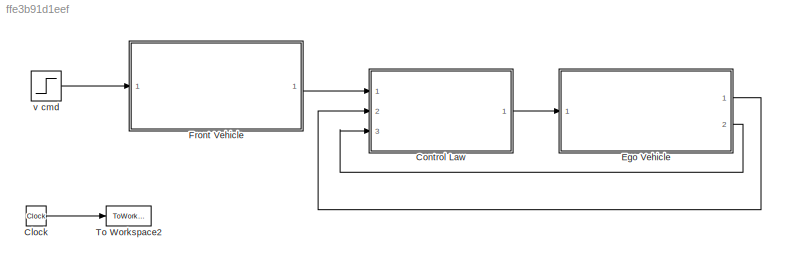
MODEL slx_ffe3b91d1eef
KIND model
CONFIG AbsTol = auto
CONFIG EnableMultiTasking = off
CONFIG FixedStep = dt
CONFIG MaxStep = auto
CONFIG MinStep = auto
CONFIG RelTol = 1e-3
CONFIG SampleTimeConstraint = Unconstrained
CONFIG Solver = FixedStepAuto
CONFIG SolverName = FixedStepAuto
CONFIG StartTime = 0.0
CONFIG StopTime = 40
BLOCK [Clock] Clock
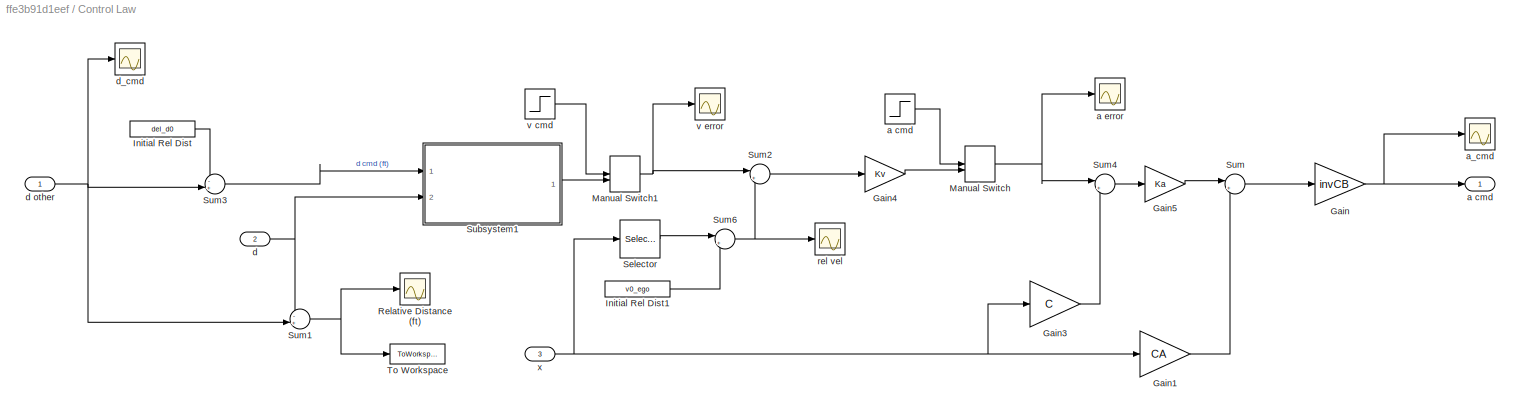
BLOCK [SubSystem] Control Law
  Ports = [3, 1]
  RequestExecContextInheritance = off
BLOCK [Gain] Control Law/Gain
  Gain = invCB
  Multiplication = Matrix(K*u)
  OutDataTypeStr = Inherit: Inherit via internal rule
  ParamDataTypeStr = Inherit: Inherit via internal rule
  SaturateOnIntegerOverflow = off
BLOCK [Gain] Control Law/Gain1
  Gain = CA
  Multiplication = Matrix(K*u)
  OutDataTypeStr = Inherit: Inherit via internal rule
  ParamDataTypeStr = Inherit: Inherit via internal rule
  SaturateOnIntegerOverflow = off
BLOCK [Gain] Control Law/Gain3
  Gain = C
  Multiplication = Matrix(K*u)
  OutDataTypeStr = Inherit: Inherit via internal rule
  ParamDataTypeStr = Inherit: Inherit via internal rule
  SaturateOnIntegerOverflow = off
BLOCK [Gain] Control Law/Gain4
  Gain = Kv
  OutDataTypeStr = Inherit: Inherit via internal rule
  ParamDataTypeStr = Inherit: Inherit via internal rule
  SaturateOnIntegerOverflow = off
BLOCK [Gain] Control Law/Gain5
  Gain = Ka
  OutDataTypeStr = Inherit: Inherit via internal rule
  ParamDataTypeStr = Inherit: Inherit via internal rule
  SaturateOnIntegerOverflow = off
BLOCK [Constant] Control Law/Initial Rel Dist
  Value = del_d0
BLOCK [Constant] Control Law/Initial Rel Dist1
  Value = v0_ego
BLOCK [ManualSwitch] Control Law/Manual Switch
  CurrentSetting = 0
BLOCK [ManualSwitch] Control Law/Manual Switch1
  CurrentSetting = 0
BLOCK [Scope] Control Law/Relative Distance (ft)
  Floating = off
  NumInputPorts = 1
  Ports = [1]
  ScopeSpecificationString = Simulink.scopes.TimeScopeBlockCfg('CurrentConfiguration', extmgr.ConfigurationSet(extmgr.Configuration('Core','General UI',true),extmgr.Configuration('Core','Source UI',true),extmgr.Configuration('Sources','WiredSimulink',true,'DataLoggingVariableName','ScopeData1'),extmgr.Configuration('Visuals','Time Domain',true,'SerializedDisplays',{struct('MinYLimReal','58.1625','MaxYLimReal','76.5375','YLabe...<+1417ch>
BLOCK [Selector] Control Law/Selector
  IndexOptions = Index vector (dialog)
  Indices = 1
  InputPortWidth = 2
  OutputSizes = 1
  Ports = [1, 1]
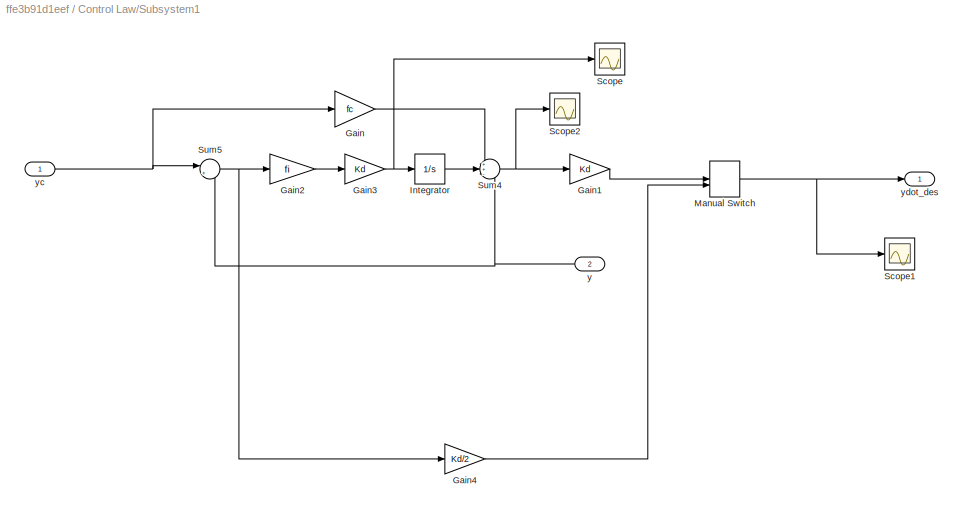
BLOCK [SubSystem] Control Law/Subsystem1
  Ports = [2, 1]
  RequestExecContextInheritance = off
BLOCK [Gain] Control Law/Subsystem1/Gain
  Gain = fc
  OutDataTypeStr = Inherit: Inherit via internal rule
  ParamDataTypeStr = Inherit: Inherit via internal rule
  SaturateOnIntegerOverflow = off
BLOCK [Gain] Control Law/Subsystem1/Gain1
  Gain = Kd
  OutDataTypeStr = Inherit: Inherit via internal rule
  ParamDataTypeStr = Inherit: Inherit via internal rule
  SaturateOnIntegerOverflow = off
BLOCK [Gain] Control Law/Subsystem1/Gain2
  Gain = fi
  OutDataTypeStr = Inherit: Inherit via internal rule
  ParamDataTypeStr = Inherit: Inherit via internal rule
  SaturateOnIntegerOverflow = off
BLOCK [Gain] Control Law/Subsystem1/Gain3
  Gain = Kd
  OutDataTypeStr = Inherit: Inherit via internal rule
  ParamDataTypeStr = Inherit: Inherit via internal rule
  SaturateOnIntegerOverflow = off
BLOCK [Gain] Control Law/Subsystem1/Gain4
  Gain = Kd/2
  OutDataTypeStr = Inherit: Inherit via internal rule
  ParamDataTypeStr = Inherit: Inherit via internal rule
  SaturateOnIntegerOverflow = off
BLOCK [Integrator] Control Law/Subsystem1/Integrator
  Ports = [1, 1]
BLOCK [ManualSwitch] Control Law/Subsystem1/Manual Switch
BLOCK [Scope] Control Law/Subsystem1/Scope
  Floating = off
  NumInputPorts = 1
  Ports = [1]
  ScopeSpecificationString = Simulink.scopes.TimeScopeBlockCfg('CurrentConfiguration', extmgr.ConfigurationSet(extmgr.Configuration('Core','General UI',true),extmgr.Configuration('Core','Source UI',true),extmgr.Configuration('Sources','WiredSimulink',true,'DataLoggingVariableName','ScopeData6'),extmgr.Configuration('Visuals','Time Domain',true,'SerializedDisplays',{struct('MinYLimReal','-0.91875','MaxYLimReal','8.26875','YLab...<+1419ch>
BLOCK [Scope] Control Law/Subsystem1/Scope1
  Floating = off
  NumInputPorts = 1
  Ports = [1]
  ScopeSpecificationString = Simulink.scopes.TimeScopeBlockCfg('CurrentConfiguration', extmgr.ConfigurationSet(extmgr.Configuration('Core','General UI',true),extmgr.Configuration('Core','Source UI',true),extmgr.Configuration('Sources','WiredSimulink',true,'DataLoggingVariableName','ScopeData8'),extmgr.Configuration('Visuals','Time Domain',true,'SerializedDisplays',{struct('MinYLimReal','-1.8375','MaxYLimReal','16.5375','YLabe...<+1425ch>
BLOCK [Scope] Control Law/Subsystem1/Scope2
  Floating = off
  NumInputPorts = 1
  Ports = [1]
  ScopeSpecificationString = Simulink.scopes.TimeScopeBlockCfg('CurrentConfiguration', extmgr.ConfigurationSet(extmgr.Configuration('Core','General UI',true),extmgr.Configuration('Core','Source UI',true),extmgr.Configuration('Sources','WiredSimulink',true,'DataLoggingVariableName','ScopeData9'),extmgr.Configuration('Visuals','Time Domain',true,'SerializedDisplays',{struct('MinYLimReal','-0.91875','MaxYLimReal','8.26875','YLab...<+1418ch>
BLOCK [Sum] Control Law/Subsystem1/Sum4
  IconShape = round
  InputSameDT = off
  Inputs = ++-
  OutDataTypeStr = Inherit: Inherit via internal rule
  Ports = [3, 1]
  SaturateOnIntegerOverflow = off
BLOCK [Sum] Control Law/Subsystem1/Sum5
  IconShape = round
  InputSameDT = off
  Inputs = |+-
  OutDataTypeStr = Inherit: Inherit via internal rule
  Ports = [2, 1]
  SaturateOnIntegerOverflow = off
BLOCK [Inport] Control Law/Subsystem1/y
  IconDisplay = Port number
  Port = 2
BLOCK [Inport] Control Law/Subsystem1/yc
  IconDisplay = Port number
BLOCK [Outport] Control Law/Subsystem1/ydot_des
  IconDisplay = Port number
BLOCK [Sum] Control Law/Sum
  IconShape = round
  InputSameDT = off
  Inputs = |+-
  OutDataTypeStr = Inherit: Inherit via internal rule
  Ports = [2, 1]
  SaturateOnIntegerOverflow = off
BLOCK [Sum] Control Law/Sum1
  IconShape = round
  InputSameDT = off
  Inputs = -+|
  OutDataTypeStr = Inherit: Inherit via internal rule
  Ports = [2, 1]
  SaturateOnIntegerOverflow = off
BLOCK [Sum] Control Law/Sum2
  IconShape = round
  InputSameDT = off
  Inputs = |+-
  OutDataTypeStr = Inherit: Inherit via internal rule
  Ports = [2, 1]
  SaturateOnIntegerOverflow = off
BLOCK [Sum] Control Law/Sum3
  IconShape = round
  InputSameDT = off
  Inputs = -+|
  OutDataTypeStr = Inherit: Inherit via internal rule
  Ports = [2, 1]
  SaturateOnIntegerOverflow = off
BLOCK [Sum] Control Law/Sum4
  IconShape = round
  InputSameDT = off
  Inputs = |+-
  OutDataTypeStr = Inherit: Inherit via internal rule
  Ports = [2, 1]
  SaturateOnIntegerOverflow = off
BLOCK [Sum] Control Law/Sum6
  IconShape = round
  InputSameDT = off
  Inputs = |+-
  OutDataTypeStr = Inherit: Inherit via internal rule
  Ports = [2, 1]
  SaturateOnIntegerOverflow = off
BLOCK [ToWorkspace] Control Law/To Workspace
  FixptAsFi = on
  MaxDataPoints = inf
  Ports = [1]
  SampleTime = -1
  Save2DSignal = 3-D array (concatenate along third dimension)
  SaveFormat = Timeseries
  VariableName = rel_dist
BLOCK [Outport] Control Law/a cmd
  IconDisplay = Port number
BLOCK [Step] Control Law/a cmd 
  SampleTime = 0
BLOCK [Scope] Control Law/a error
  Floating = off
  NumInputPorts = 1
  Ports = [1]
  ScopeSpecificationString = Simulink.scopes.TimeScopeBlockCfg('CurrentConfiguration', extmgr.ConfigurationSet(extmgr.Configuration('Core','General UI',true),extmgr.Configuration('Core','Source UI',true),extmgr.Configuration('Sources','WiredSimulink',true,'DataLoggingVariableName','ScopeData4'),extmgr.Configuration('Visuals','Time Domain',true,'SerializedDisplays',{struct('MinYLimReal','-0.57498','MaxYLimReal','5.17478','YLab...<+1428ch>
BLOCK [Scope] Control Law/a_cmd
  Floating = off
  NumInputPorts = 1
  Ports = [1]
  ScopeSpecificationString = Simulink.scopes.TimeScopeBlockCfg('CurrentConfiguration', extmgr.ConfigurationSet(extmgr.Configuration('Core','General UI',true),extmgr.Configuration('Core','Source UI',true),extmgr.Configuration('Sources','WiredSimulink',true,'DataLoggingVariableName','ScopeData2'),extmgr.Configuration('Visuals','Time Domain',true,'SerializedDisplays',{struct('MinYLimReal','-37500.6717','MaxYLimReal','158723.7949...<+1470ch>
BLOCK [Inport] Control Law/d
  IconDisplay = Port number
  Port = 2
BLOCK [Inport] Control Law/d other
  IconDisplay = Port number
BLOCK [Scope] Control Law/d_cmd
  Floating = off
  NumInputPorts = 1
  Ports = [1]
  ScopeSpecificationString = Simulink.scopes.TimeScopeBlockCfg('CurrentConfiguration', extmgr.ConfigurationSet(extmgr.Configuration('Core','General UI',true),extmgr.Configuration('Core','Source UI',true),extmgr.Configuration('Sources','WiredSimulink',true,'DataLoggingVariableName','ScopeData14'),extmgr.Configuration('Visuals','Time Domain',true,'SerializedDisplays',{struct('MinYLimReal','-7.9875','MaxYLimReal','671.8875','YLa...<+1399ch>
BLOCK [Scope] Control Law/rel vel
  Floating = off
  NumInputPorts = 1
  Ports = [1]
  ScopeSpecificationString = Simulink.scopes.TimeScopeBlockCfg('CurrentConfiguration', extmgr.ConfigurationSet(extmgr.Configuration('Core','General UI',true),extmgr.Configuration('Core','Source UI',true),extmgr.Configuration('Sources','WiredSimulink',true,'DataLoggingVariableName','ScopeData5'),extmgr.Configuration('Visuals','Time Domain',true,'SerializedDisplays',{struct('MinYLimReal','-1.8375','MaxYLimReal','16.5375','YLabe...<+1391ch>
BLOCK [Step] Control Law/v cmd
  After = v0_ego + 10*mph2fps
  Before = v0_ego
  SampleTime = 0
BLOCK [Scope] Control Law/v error
  Floating = off
  NumInputPorts = 1
  Ports = [1]
  ScopeSpecificationString = Simulink.scopes.TimeScopeBlockCfg('CurrentConfiguration', extmgr.ConfigurationSet(extmgr.Configuration('Core','General UI',true),extmgr.Configuration('Core','Source UI',true),extmgr.Configuration('Sources','WiredSimulink',true,'DataLoggingVariableName','ScopeData3'),extmgr.Configuration('Visuals','Time Domain',true,'SerializedDisplays',{struct('MinYLimReal','-1.8375','MaxYLimReal','16.5375','YLabe...<+1427ch>
BLOCK [Inport] Control Law/x
  IconDisplay = Port number
  Port = 3
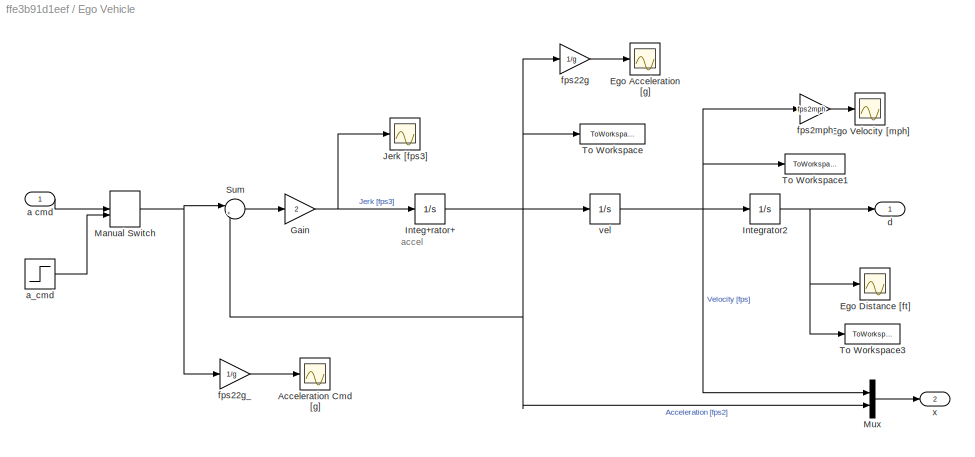
BLOCK [SubSystem] Ego Vehicle
  Ports = [1, 2]
  RequestExecContextInheritance = off
BLOCK [Scope] Ego Vehicle/Acceleration Cmd [g]
  Floating = off
  NumInputPorts = 1
  Ports = [1]
  ScopeSpecificationString = Simulink.scopes.TimeScopeBlockCfg('CurrentConfiguration', extmgr.ConfigurationSet(extmgr.Configuration('Core','General UI',true),extmgr.Configuration('Core','Source UI',true),extmgr.Configuration('Sources','WiredSimulink',true,'DataLoggingVariableName','ScopeData1'),extmgr.Configuration('Visuals','Time Domain',true,'SerializedDisplays',{struct('MinYLimReal','-0.02084','MaxYLimReal','0.1876','YLabe...<+1391ch>
BLOCK [Scope] Ego Vehicle/Ego Acceleration [g]
  Floating = off
  NumInputPorts = 1
  Ports = [1]
  ScopeSpecificationString = Simulink.scopes.TimeScopeBlockCfg('CurrentConfiguration', extmgr.ConfigurationSet(extmgr.Configuration('Core','General UI',true),extmgr.Configuration('Core','Source UI',true),extmgr.Configuration('Sources','WiredSimulink',true,'DataLoggingVariableName','ScopeData2'),extmgr.Configuration('Visuals','Time Domain',true,'SerializedDisplays',{struct('MinYLimReal','-0.75','MaxYLimReal','0.75','YLabelReal...<+1422ch>
BLOCK [Scope] Ego Vehicle/Ego Distance [ft]
  Floating = off
  NumInputPorts = 1
  Ports = [1]
  ScopeSpecificationString = Simulink.scopes.TimeScopeBlockCfg('CurrentConfiguration', extmgr.ConfigurationSet(extmgr.Configuration('Core','General UI',true),extmgr.Configuration('Core','Source UI',true),extmgr.Configuration('Sources','WiredSimulink',true),extmgr.Configuration('Visuals','Time Domain',true,'SerializedDisplays',{struct('MinYLimReal','-66.15','MaxYLimReal','595.35','YLabelReal','','MinYLimMag','0.00000','MaxYLim...<+1353ch>
BLOCK [Scope] Ego Vehicle/Ego Velocity [mph]
  Floating = off
  NumInputPorts = 1
  Ports = [1]
  ScopeSpecificationString = Simulink.scopes.TimeScopeBlockCfg('CurrentConfiguration', extmgr.ConfigurationSet(extmgr.Configuration('Core','General UI',true),extmgr.Configuration('Core','Source UI',true),extmgr.Configuration('Sources','WiredSimulink',true,'DataLoggingVariableName','ScopeData1'),extmgr.Configuration('Visuals','Time Domain',true,'SerializedDisplays',{struct('MinYLimReal','-1.27739','MaxYLimReal','11.49655','YLa...<+1444ch>
BLOCK [Gain] Ego Vehicle/Gain
  Gain = 2
  OutDataTypeStr = Inherit: Inherit via internal rule
  ParamDataTypeStr = Inherit: Inherit via internal rule
  SaturateOnIntegerOverflow = off
BLOCK [Integrator] Ego Vehicle/Integ+rator+
  LimitOutput = on
  LowerSaturationLimit = min_accel
  Ports = [1, 1]
  UpperSaturationLimit = max_accel
BLOCK [Integrator] Ego Vehicle/Integrator2
  InitialCondition = d0_ego
  Ports = [1, 1]
BLOCK [Scope] Ego Vehicle/Jerk [fps3]
  Floating = off
  NumInputPorts = 1
  Ports = [1]
  ScopeSpecificationString = Simulink.scopes.TimeScopeBlockCfg('CurrentConfiguration', extmgr.ConfigurationSet(extmgr.Configuration('Core','General UI',true),extmgr.Configuration('Core','Source UI',true),extmgr.Configuration('Sources','WiredSimulink',true,'DataLoggingVariableName','ScopeData7'),extmgr.Configuration('Visuals','Time Domain',true,'SerializedDisplays',{struct('MinYLimReal','-2.32474','MaxYLimReal','6.41268','YLab...<+1445ch>
BLOCK [ManualSwitch] Ego Vehicle/Manual Switch
BLOCK [Mux] Ego Vehicle/Mux
  DisplayOption = bar
  Inputs = 2
  Ports = [2, 1]
BLOCK [Sum] Ego Vehicle/Sum
  IconShape = round
  InputSameDT = off
  Inputs = |+-
  OutDataTypeStr = Inherit: Inherit via internal rule
  Ports = [2, 1]
  SaturateOnIntegerOverflow = off
BLOCK [ToWorkspace] Ego Vehicle/To Workspace
  FixptAsFi = on
  MaxDataPoints = inf
  Ports = [1]
  SampleTime = -1
  Save2DSignal = 3-D array (concatenate along third dimension)
  VariableName = accel_ego
BLOCK [ToWorkspace] Ego Vehicle/To Workspace1
  FixptAsFi = on
  MaxDataPoints = inf
  Ports = [1]
  SampleTime = -1
  Save2DSignal = 3-D array (concatenate along third dimension)
  VariableName = vel_ego
BLOCK [ToWorkspace] Ego Vehicle/To Workspace3
  FixptAsFi = on
  MaxDataPoints = inf
  Ports = [1]
  SampleTime = -1
  Save2DSignal = 3-D array (concatenate along third dimension)
  VariableName = dist_ego
BLOCK [Inport] Ego Vehicle/a cmd
  IconDisplay = Port number
BLOCK [Step] Ego Vehicle/a_cmd
  SampleTime = 0
BLOCK [Outport] Ego Vehicle/d
  IconDisplay = Port number
BLOCK [Gain] Ego Vehicle/fps22g
  Gain = 1/g
  OutDataTypeStr = Inherit: Inherit via internal rule
  ParamDataTypeStr = Inherit: Inherit via internal rule
  SaturateOnIntegerOverflow = off
BLOCK [Gain] Ego Vehicle/fps22g_
  Gain = 1/g
  OutDataTypeStr = Inherit: Inherit via internal rule
  ParamDataTypeStr = Inherit: Inherit via internal rule
  SaturateOnIntegerOverflow = off
BLOCK [Gain] Ego Vehicle/fps2mph
  Gain = fps2mph
  OutDataTypeStr = Inherit: Inherit via internal rule
  ParamDataTypeStr = Inherit: Inherit via internal rule
  SaturateOnIntegerOverflow = off
BLOCK [Integrator] Ego Vehicle/vel
  InitialCondition = v0_ego
  Ports = [1, 1]
BLOCK [Outport] Ego Vehicle/x
  IconDisplay = Port number
  Port = 2
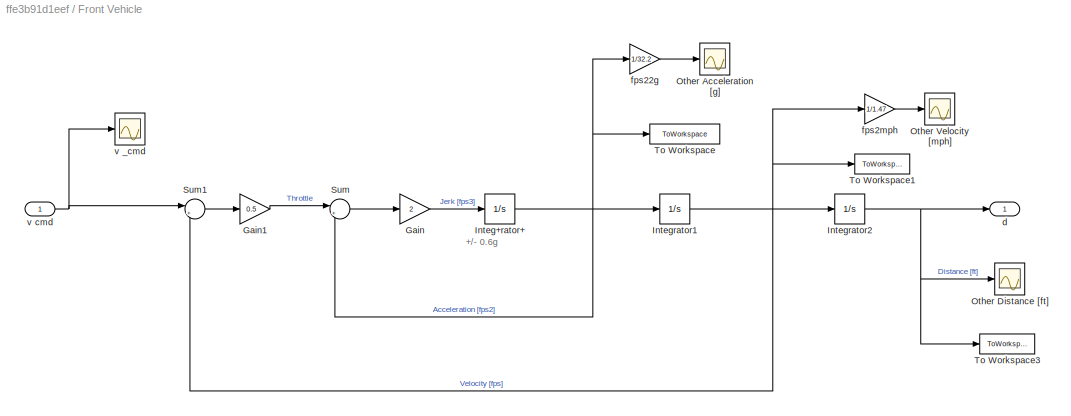
BLOCK [SubSystem] Front Vehicle
  Ports = [1, 1]
  RequestExecContextInheritance = off
BLOCK [Gain] Front Vehicle/Gain
  Gain = 2
  OutDataTypeStr = Inherit: Inherit via internal rule
  ParamDataTypeStr = Inherit: Inherit via internal rule
  SaturateOnIntegerOverflow = off
BLOCK [Gain] Front Vehicle/Gain1
  Gain = 0.5
  OutDataTypeStr = Inherit: Inherit via internal rule
  ParamDataTypeStr = Inherit: Inherit via internal rule
  SaturateOnIntegerOverflow = off
BLOCK [Integrator] Front Vehicle/Integ+rator+
  LimitOutput = on
  LowerSaturationLimit = min_accel
  Ports = [1, 1]
  UpperSaturationLimit = max_accel
BLOCK [Integrator] Front Vehicle/Integrator1
  InitialCondition = v0_other
  Ports = [1, 1]
BLOCK [Integrator] Front Vehicle/Integrator2
  InitialCondition = d0_other
  Ports = [1, 1]
BLOCK [Scope] Front Vehicle/Other Acceleration [g]
  Floating = off
  NumInputPorts = 1
  Ports = [1]
  ScopeSpecificationString = Simulink.scopes.TimeScopeBlockCfg('CurrentConfiguration', extmgr.ConfigurationSet(extmgr.Configuration('Core','General UI',true),extmgr.Configuration('Core','Source UI',true),extmgr.Configuration('Sources','WiredSimulink',true,'DataLoggingVariableName','ScopeData2'),extmgr.Configuration('Visuals','Time Domain',true,'SerializedDisplays',{struct('MinYLimReal','-1.00000','MaxYLimReal','1.00000','YLab...<+1414ch>
BLOCK [Scope] Front Vehicle/Other Distance [ft]
  Floating = off
  NumInputPorts = 1
  Ports = [1]
  ScopeSpecificationString = Simulink.scopes.TimeScopeBlockCfg('CurrentConfiguration', extmgr.ConfigurationSet(extmgr.Configuration('Core','General UI',true),extmgr.Configuration('Core','Source UI',true),extmgr.Configuration('Sources','WiredSimulink',true),extmgr.Configuration('Visuals','Time Domain',true,'SerializedDisplays',{struct('MinYLimReal','-7.9875','MaxYLimReal','671.8875','YLabelReal','','MinYLimMag','0.00000','MaxY...<+1365ch>
BLOCK [Scope] Front Vehicle/Other Velocity [mph]
  Floating = off
  NumInputPorts = 1
  Ports = [1]
  ScopeSpecificationString = Simulink.scopes.TimeScopeBlockCfg('CurrentConfiguration', extmgr.ConfigurationSet(extmgr.Configuration('Core','General UI',true),extmgr.Configuration('Core','Source UI',true),extmgr.Configuration('Sources','WiredSimulink',true,'DataLoggingVariableName','ScopeData1'),extmgr.Configuration('Visuals','Time Domain',true,'SerializedDisplays',{struct('MinYLimReal','35.00000','MaxYLimReal','55.00000','YLa...<+1420ch>
BLOCK [Sum] Front Vehicle/Sum
  IconShape = round
  InputSameDT = off
  Inputs = |+-
  OutDataTypeStr = Inherit: Inherit via internal rule
  Ports = [2, 1]
  SaturateOnIntegerOverflow = off
BLOCK [Sum] Front Vehicle/Sum1
  IconShape = round
  InputSameDT = off
  Inputs = |+-
  OutDataTypeStr = Inherit: Inherit via internal rule
  Ports = [2, 1]
  SaturateOnIntegerOverflow = off
BLOCK [ToWorkspace] Front Vehicle/To Workspace
  FixptAsFi = on
  MaxDataPoints = inf
  Ports = [1]
  SampleTime = -1
  Save2DSignal = 3-D array (concatenate along third dimension)
  VariableName = accel_other
BLOCK [ToWorkspace] Front Vehicle/To Workspace1
  FixptAsFi = on
  MaxDataPoints = inf
  Ports = [1]
  SampleTime = -1
  Save2DSignal = 3-D array (concatenate along third dimension)
  VariableName = vel_other
BLOCK [ToWorkspace] Front Vehicle/To Workspace3
  FixptAsFi = on
  MaxDataPoints = inf
  Ports = [1]
  SampleTime = -1
  Save2DSignal = 3-D array (concatenate along third dimension)
  VariableName = dist_other
BLOCK [Outport] Front Vehicle/d
  IconDisplay = Port number
BLOCK [Gain] Front Vehicle/fps22g
  Gain = 1/32.2
  OutDataTypeStr = Inherit: Inherit via internal rule
  ParamDataTypeStr = Inherit: Inherit via internal rule
  SaturateOnIntegerOverflow = off
BLOCK [Gain] Front Vehicle/fps2mph
  Gain = 1/1.47
  OutDataTypeStr = Inherit: Inherit via internal rule
  ParamDataTypeStr = Inherit: Inherit via internal rule
  SaturateOnIntegerOverflow = off
BLOCK [Scope] Front Vehicle/v _cmd
  Floating = off
  NumInputPorts = 1
  Ports = [1]
  ScopeSpecificationString = Simulink.scopes.TimeScopeBlockCfg('CurrentConfiguration', extmgr.ConfigurationSet(extmgr.Configuration('Core','General UI',true),extmgr.Configuration('Core','Source UI',true),extmgr.Configuration('Sources','WiredSimulink',true,'DataLoggingVariableName','ScopeData2'),extmgr.Configuration('Visuals','Time Domain',true,'SerializedDisplays',{struct('MinYLimReal','-1.8375','MaxYLimReal','16.5375','YLabe...<+1392ch>
BLOCK [Inport] Front Vehicle/v cmd
  IconDisplay = Port number
BLOCK [ToWorkspace] To Workspace2
  FixptAsFi = on
  MaxDataPoints = inf
  Ports = [1]
  SampleTime = -1
  Save2DSignal = 3-D array (concatenate along third dimension)
  VariableName = time
BLOCK [Step] v cmd 
  After = v_other
  Before = v0_other
  SampleTime = 0
ANNOTATION Ego Vehicle: accel
ANNOTATION Front Vehicle: +/- 0.6g
LINE Clock:1 -> To Workspace2:1
LINE Control Law/Gain1:1 -> Control Law/Sum:2
LINE Control Law/Gain3:1 -> Control Law/Sum4:2
LINE Control Law/Gain4:1 -> Control Law/Manual Switch:2
LINE Control Law/Gain5:1 -> Control Law/Sum:1
NET Control Law/Gain:1 -> Control Law/a cmd:1, Control Law/a_cmd:1
LINE Control Law/Initial Rel Dist1:1 -> Control Law/Sum6:2
LINE Control Law/Initial Rel Dist:1 -> Control Law/Sum3:1
NET Control Law/Manual Switch1:1 -> Control Law/Sum2:1, Control Law/v error:1
NET Control Law/Manual Switch:1 -> Control Law/Sum4:1, Control Law/a error:1
LINE Control Law/Selector:1 -> Control Law/Sum6:1
LINE Control Law/Subsystem1/Gain1:1 -> Control Law/Subsystem1/Manual Switch:1
LINE Control Law/Subsystem1/Gain2:1 -> Control Law/Subsystem1/Gain3:1
NET Control Law/Subsystem1/Gain3:1 -> Control Law/Subsystem1/Integrator:1, Control Law/Subsystem1/Scope:1
LINE Control Law/Subsystem1/Gain4:1 -> Control Law/Subsystem1/Manual Switch:2
LINE Control Law/Subsystem1/Gain:1 -> Control Law/Subsystem1/Sum4:1
LINE Control Law/Subsystem1/Integrator:1 -> Control Law/Subsystem1/Sum4:2
NET Control Law/Subsystem1/Manual Switch:1 -> Control Law/Subsystem1/Scope1:1, Control Law/Subsystem1/ydot_des:1
NET Control Law/Subsystem1/Sum4:1 -> Control Law/Subsystem1/Gain1:1, Control Law/Subsystem1/Scope2:1
NET Control Law/Subsystem1/Sum5:1 -> Control Law/Subsystem1/Gain2:1, Control Law/Subsystem1/Gain4:1
NET Control Law/Subsystem1/y:1 -> Control Law/Subsystem1/Sum4:3, Control Law/Subsystem1/Sum5:2
NET Control Law/Subsystem1/yc:1 -> Control Law/Subsystem1/Gain:1, Control Law/Subsystem1/Sum5:1
LINE Control Law/Subsystem1:1 -> Control Law/Manual Switch1:2
NET Control Law/Sum1:1 -> Control Law/Relative Distance (ft):1, Control Law/To Workspace:1
LINE Control Law/Sum2:1 -> Control Law/Gain4:1
LINE Control Law/Sum3:1 -> Control Law/Subsystem1:1
LINE Control Law/Sum4:1 -> Control Law/Gain5:1
NET Control Law/Sum6:1 -> Control Law/Sum2:2, Control Law/rel vel:1
LINE Control Law/Sum:1 -> Control Law/Gain:1
LINE Control Law/a cmd :1 -> Control Law/Manual Switch:1
NET Control Law/d other:1 -> Control Law/Sum1:2, Control Law/Sum3:2, Control Law/d_cmd:1
NET Control Law/d:1 -> Control Law/Subsystem1:2, Control Law/Sum1:1
LINE Control Law/v cmd:1 -> Control Law/Manual Switch1:1
NET Control Law/x:1 -> Control Law/Gain1:1, Control Law/Gain3:1, Control Law/Selector:1
LINE Control Law:1 -> Ego Vehicle:1
NET Ego Vehicle/Gain:1 -> Ego Vehicle/Integ+rator+:1, Ego Vehicle/Jerk [fps3]:1
NET Ego Vehicle/Integ+rator+:1 -> Ego Vehicle/Mux:2, Ego Vehicle/Sum:2, Ego Vehicle/To Workspace:1, Ego Vehicle/fps22g:1, Ego Vehicle/vel:1
NET Ego Vehicle/Integrator2:1 -> Ego Vehicle/Ego Distance [ft]:1, Ego Vehicle/To Workspace3:1, Ego Vehicle/d:1
NET Ego Vehicle/Manual Switch:1 -> Ego Vehicle/Sum:1, Ego Vehicle/fps22g_:1
LINE Ego Vehicle/Mux:1 -> Ego Vehicle/x:1
LINE Ego Vehicle/Sum:1 -> Ego Vehicle/Gain:1
LINE Ego Vehicle/a cmd:1 -> Ego Vehicle/Manual Switch:1
LINE Ego Vehicle/a_cmd:1 -> Ego Vehicle/Manual Switch:2
LINE Ego Vehicle/fps22g:1 -> Ego Vehicle/Ego Acceleration [g]:1
LINE Ego Vehicle/fps22g_:1 -> Ego Vehicle/Acceleration Cmd [g]:1
LINE Ego Vehicle/fps2mph:1 -> Ego Vehicle/Ego Velocity [mph]:1
NET Ego Vehicle/vel:1 -> Ego Vehicle/Integrator2:1, Ego Vehicle/Mux:1, Ego Vehicle/To Workspace1:1, Ego Vehicle/fps2mph:1
LINE Ego Vehicle:1 -> Control Law:2
LINE Ego Vehicle:2 -> Control Law:3
LINE Front Vehicle/Gain1:1 -> Front Vehicle/Sum:1
LINE Front Vehicle/Gain:1 -> Front Vehicle/Integ+rator+:1
NET Front Vehicle/Integ+rator+:1 -> Front Vehicle/Integrator1:1, Front Vehicle/Sum:2, Front Vehicle/To Workspace:1, Front Vehicle/fps22g:1
NET Front Vehicle/Integrator1:1 -> Front Vehicle/Integrator2:1, Front Vehicle/Sum1:2, Front Vehicle/To Workspace1:1, Front Vehicle/fps2mph:1
NET Front Vehicle/Integrator2:1 -> Front Vehicle/Other Distance [ft]:1, Front Vehicle/To Workspace3:1, Front Vehicle/d:1
LINE Front Vehicle/Sum1:1 -> Front Vehicle/Gain1:1
LINE Front Vehicle/Sum:1 -> Front Vehicle/Gain:1
LINE Front Vehicle/fps22g:1 -> Front Vehicle/Other Acceleration [g]:1
LINE Front Vehicle/fps2mph:1 -> Front Vehicle/Other Velocity [mph]:1
NET Front Vehicle/v cmd:1 -> Front Vehicle/Sum1:1, Front Vehicle/v _cmd:1
LINE Front Vehicle:1 -> Control Law:1
LINE v cmd :1 -> Front Vehicle:1
note: NET lines group one-source signal fan-out (src -> all destinations, sorted); 1:1 wires keep LINE
